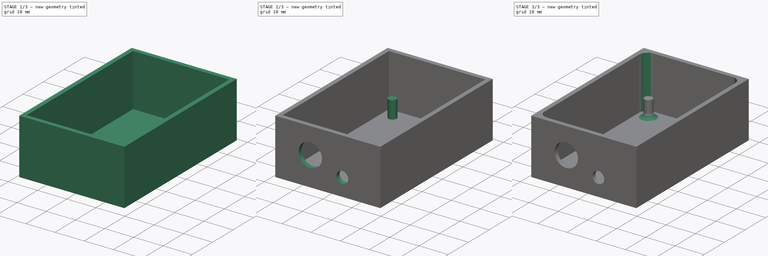
[diagram: build sequence overview — one tinted view per stage of 3, left to right]
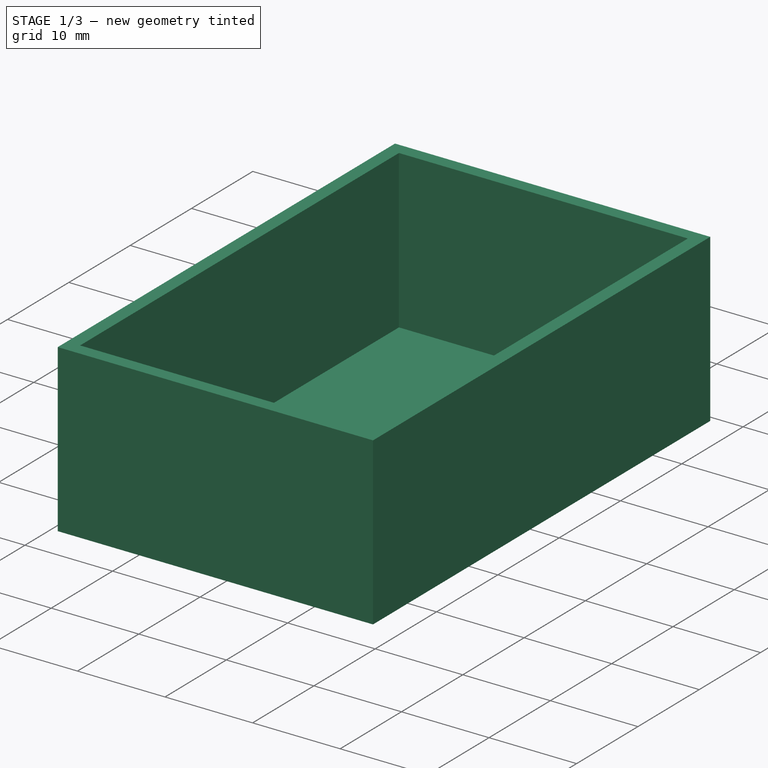
[diagram: stage 1 of 3 — iso view after this stage's code; geometry added in this stage tinted green]
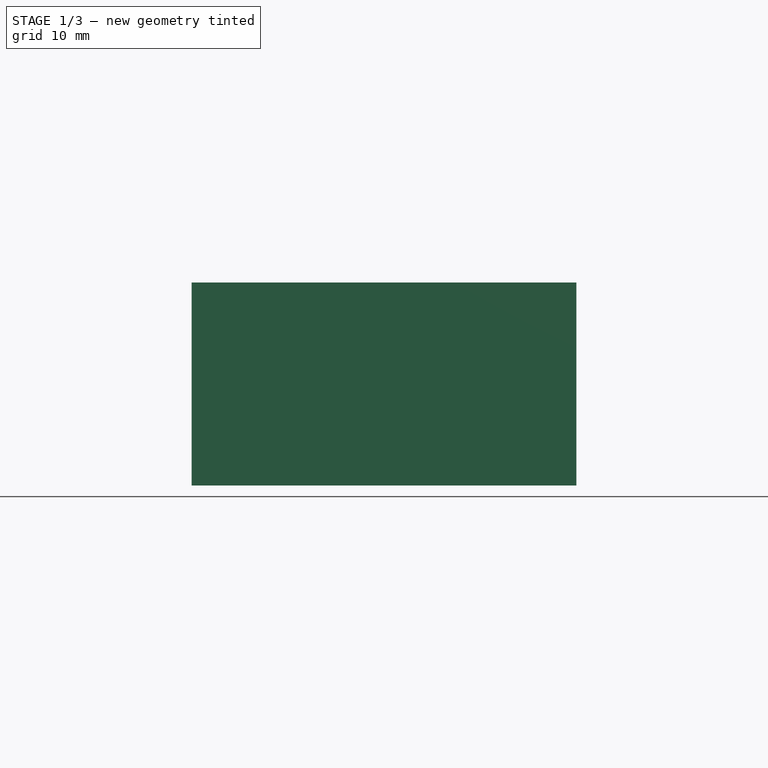
[diagram: stage 1 of 3 — front view after this stage's code; geometry added in this stage tinted green]
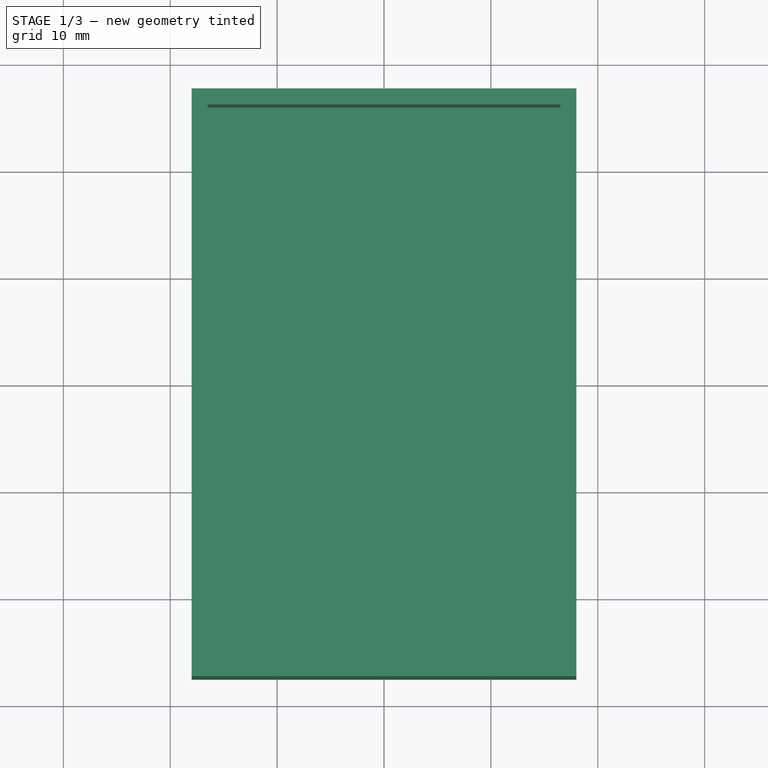
[diagram: stage 1 of 3 — top view after this stage's code; geometry added in this stage tinted green]
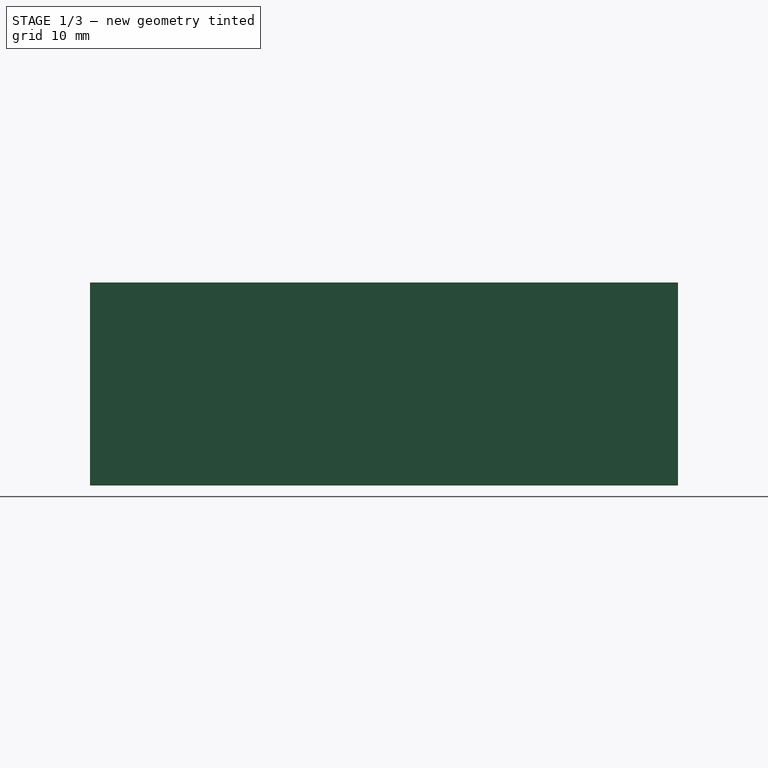
[diagram: stage 1 of 3 — right view after this stage's code; geometry added in this stage tinted green]
FCSTD DOCUMENT  (FreeCAD 0.17R13522 (Git))
Label: WaiKe-jwei
License: All rights reserved
LicenseURL: http://en.wikipedia.org/wiki/All_rights_reserved
objects: Sketcher::SketchObject×4, PartDesign::Pad×2, PartDesign::Pocket×2, PartDesign::Fillet×2, PartDesign::Mirrored×1, PartDesign::Body×1, App::MeasureDistance×1
note: 16 computed .brp shape members not serialized (recipe doc carries the construction recipe); baked Part::Feature solids carry a one-line shape summary decoded from their .brp

FEATURE [Sketcher::SketchObject] Sketch
  MapMode = 5
  Support = -> [XY_Plane]
  sketch-geometry (4):
    g0: LineSegment StartX=-18 StartY=27.5 StartZ=0 EndX=18 EndY=27.5 EndZ=0
    g1: LineSegment StartX=18 StartY=27.5 StartZ=0 EndX=18 EndY=-27.5 EndZ=0
    g2: LineSegment StartX=18 StartY=-27.5 StartZ=0 EndX=-18 EndY=-27.5 EndZ=0
    g3: LineSegment StartX=-18 StartY=-27.5 StartZ=0 EndX=-18 EndY=27.5 EndZ=0
  constraints (12):
    c: Coincident(g0,g1)
    c: Coincident(g1,g2)
    c: Coincident(g2,g3)
    c: Coincident(g3,g0)
    c: Horizontal(g0)
    c: Horizontal(g2)
    c: Vertical(g1)
    c: Vertical(g3)
    c: DistanceX(g0,g0) = 36
    c: DistanceY(g3,g3) = 55
    c: DistanceY(g-1,g0) = 27.5
    c: DistanceX(g0,g-1) = 18
FEATURE [PartDesign::Pad] Pad
  Length = 19
  Length2 = 100
  Profile = -> Sketch
  Type = 0
FEATURE [Sketcher::SketchObject] Sketch001
  ExternalGeometry = -> [Pad]
  MapMode = 5
  Placement = pos=(0,0,19) rot=(0,0,1;0rad)
  Support = -> [Pad]
  sketch-geometry (4):
    g0: LineSegment StartX=-16.5 StartY=26 StartZ=0 EndX=16.5 EndY=26 EndZ=0
    g1: LineSegment StartX=16.5 StartY=26 StartZ=0 EndX=16.5 EndY=-26 EndZ=0
    g2: LineSegment StartX=16.5 StartY=-26 StartZ=0 EndX=-16.5 EndY=-26 EndZ=0
    g3: LineSegment StartX=-16.5 StartY=-26 StartZ=0 EndX=-16.5 EndY=26 EndZ=0
  constraints (12):
    c: Coincident(g0,g1)
    c: Coincident(g1,g2)
    c: Coincident(g2,g3)
    c: Coincident(g3,g0)
    c: Horizontal(g0)
    c: Horizontal(g2)
    c: Vertical(g1)
    c: Vertical(g3)
    c: Distance(g2,g-6) = 1.5
    c: Distance(g0,g-4) = 1.5
    c: Distance(g0,g-3) = 1.5
    c: Distance(g0,g-5) = 1.5
FEATURE [PartDesign::Pocket] Pocket
  BaseFeature = -> Pad
  Length = 18
  Length2 = 100
  Profile = -> Sketch001
  Type = 0
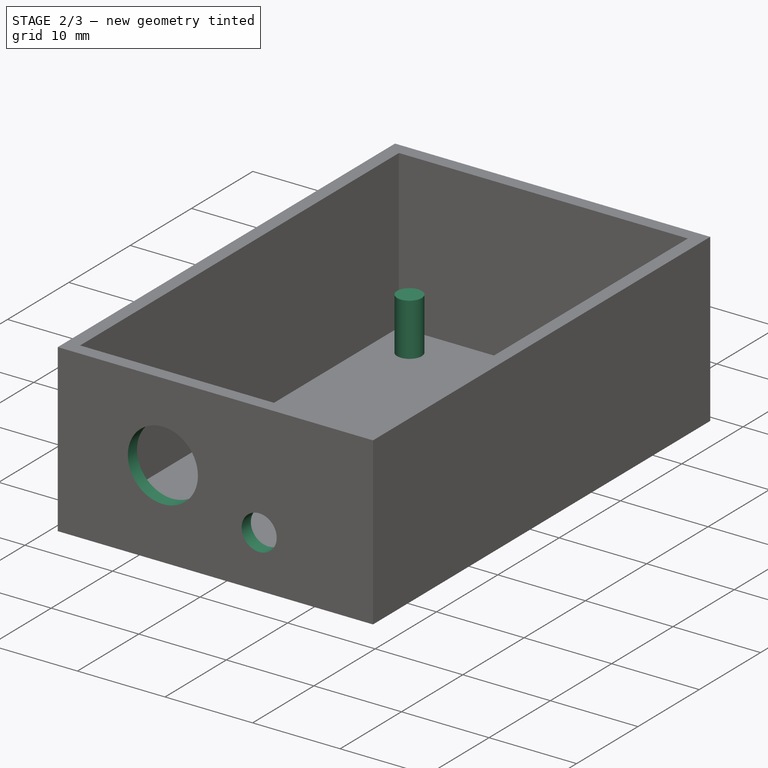
[diagram: stage 2 of 3 — iso view after this stage's code; geometry added in this stage tinted green]
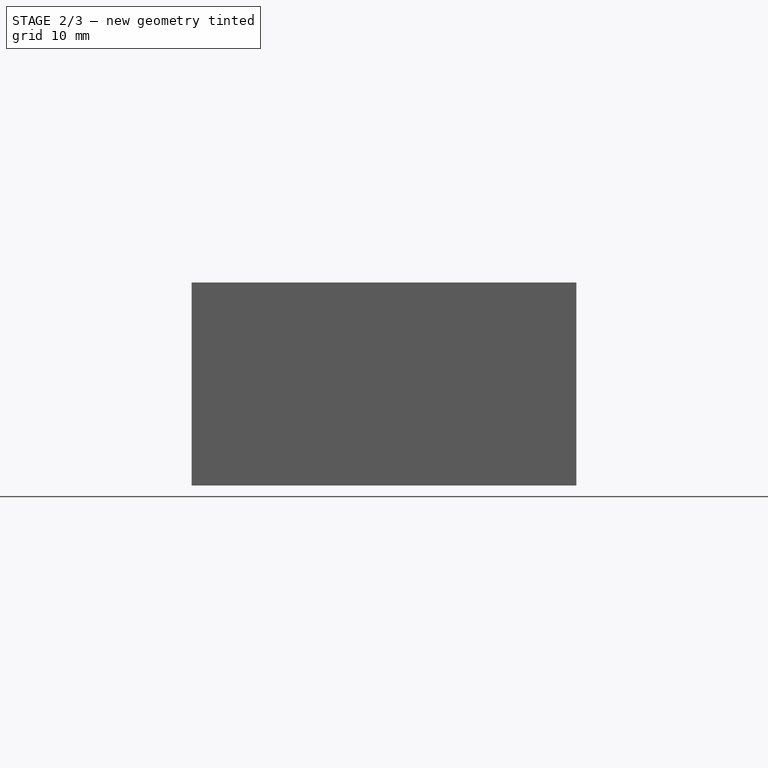
[diagram: stage 2 of 3 — front view after this stage's code; geometry added in this stage tinted green]
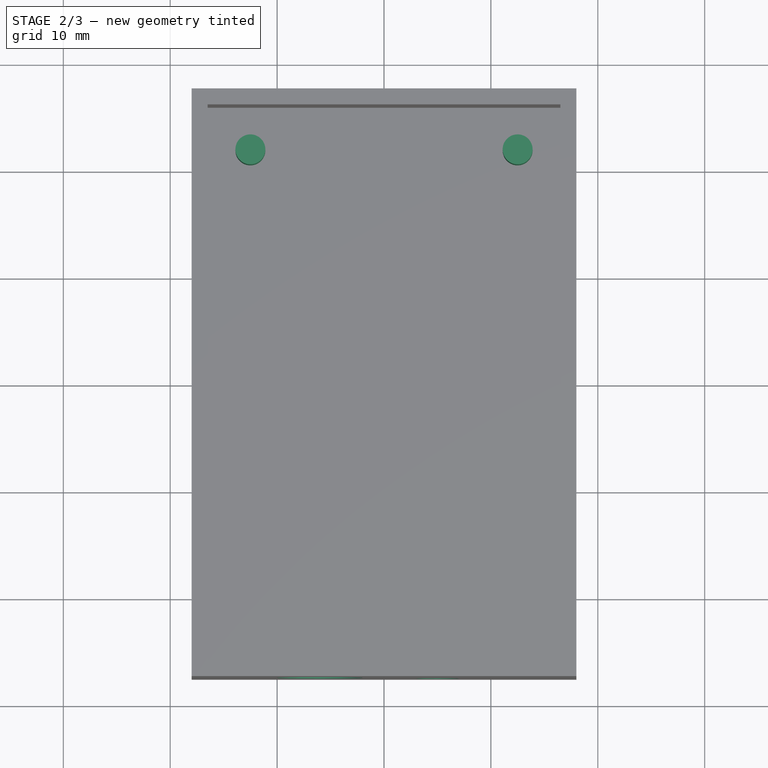
[diagram: stage 2 of 3 — top view after this stage's code; geometry added in this stage tinted green]
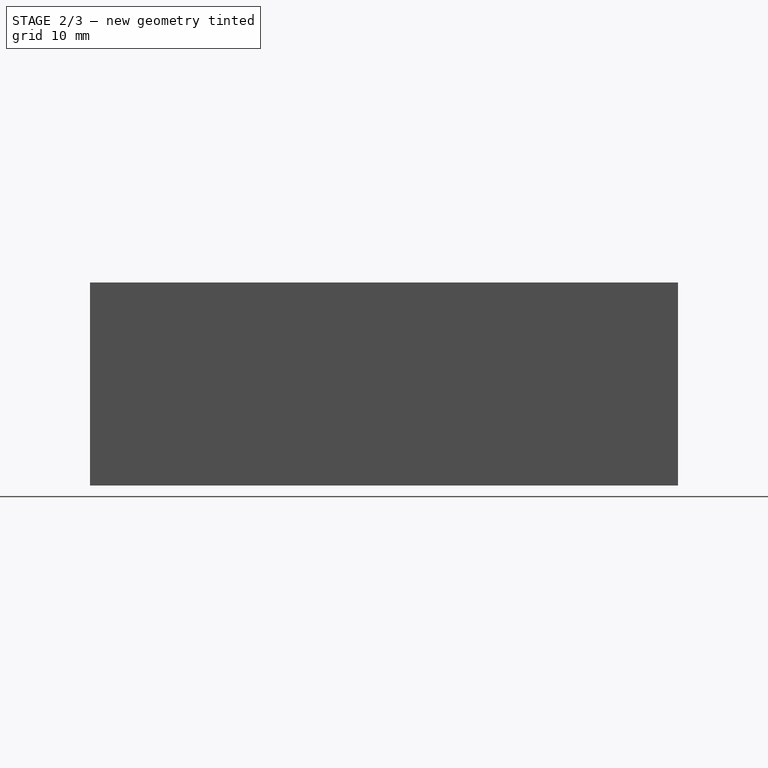
[diagram: stage 2 of 3 — right view after this stage's code; geometry added in this stage tinted green]
FEATURE [Sketcher::SketchObject] Sketch002
  ExternalGeometry = -> [Pocket]
  MapMode = 5
  Placement = pos=(0,0,1) rot=(0,0,1;0rad)
  Support = -> [Pocket]
  sketch-geometry (1):
    g0: Circle CenterX=-12.5 CenterY=22 CenterZ=0 NormalX=0 NormalY=0 NormalZ=1 AngleXU=0 Radius=1.4
  constraints (3):
    c: Radius(g0) = 1.4
    c: Distance(g0,g-3) = 4
    c: Distance(g0,g-4) = 4
FEATURE [PartDesign::Pad] Pad001
  BaseFeature = -> Pocket
  Length = 6
  Length2 = 100
  Profile = -> Sketch002
  Type = 0
FEATURE [PartDesign::Mirrored] Mirrored
  BaseFeature = -> Pad001
  MirrorPlane = -> Sketch002 [V_Axis]
  Originals = -> [Pad001]
FEATURE [Sketcher::SketchObject] Sketch003
  ExternalGeometry = -> [Mirrored]
  MapMode = 5
  Placement = pos=(0,-27.5,0) rot=(1,0,0;1.5708rad)
  Support = -> [Mirrored]
  sketch-geometry (2):
    g0: Circle CenterX=-6 CenterY=10 CenterZ=0 NormalX=0 NormalY=0 NormalZ=1 AngleXU=0 Radius=4
    g1: Circle CenterX=5 CenterY=6 CenterZ=0 NormalX=0 NormalY=0 NormalZ=1 AngleXU=0 Radius=2
  constraints (6):
    c: DistanceY(g-1,g0) = 10
    c: Distance(g0,g-3) = 12
    c: Radius(g0) = 4
    c: DistanceX(g0,g1) = 11
    c: DistanceY(g-1,g1) = 6
    c: Radius(g1) = 2
FEATURE [PartDesign::Pocket] Pocket001
  BaseFeature = -> Mirrored
  Length = 1.5
  Length2 = 100
  Profile = -> Sketch003
  Type = 0
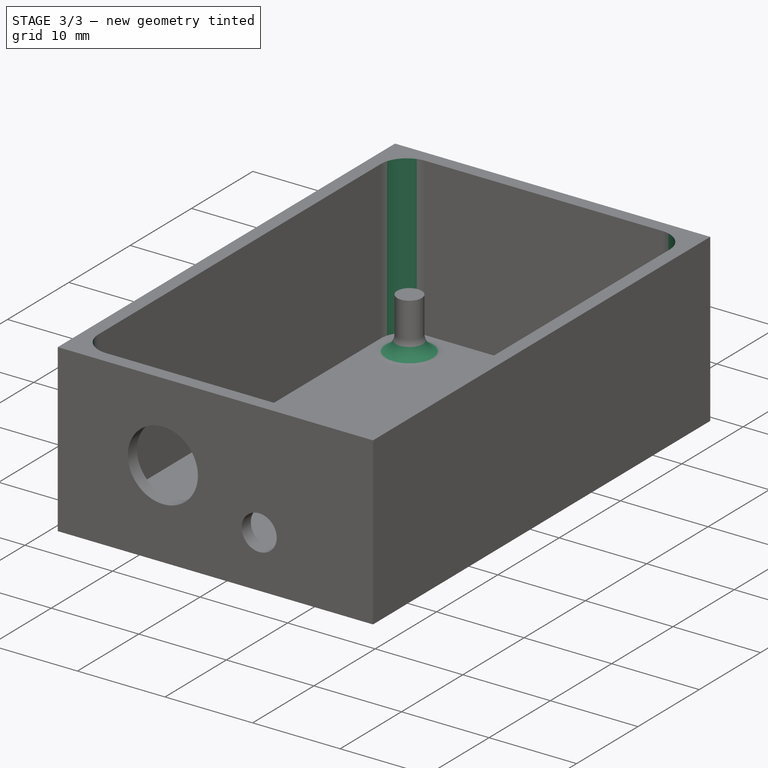
[diagram: stage 3 of 3 — iso view after this stage's code; geometry added in this stage tinted green]
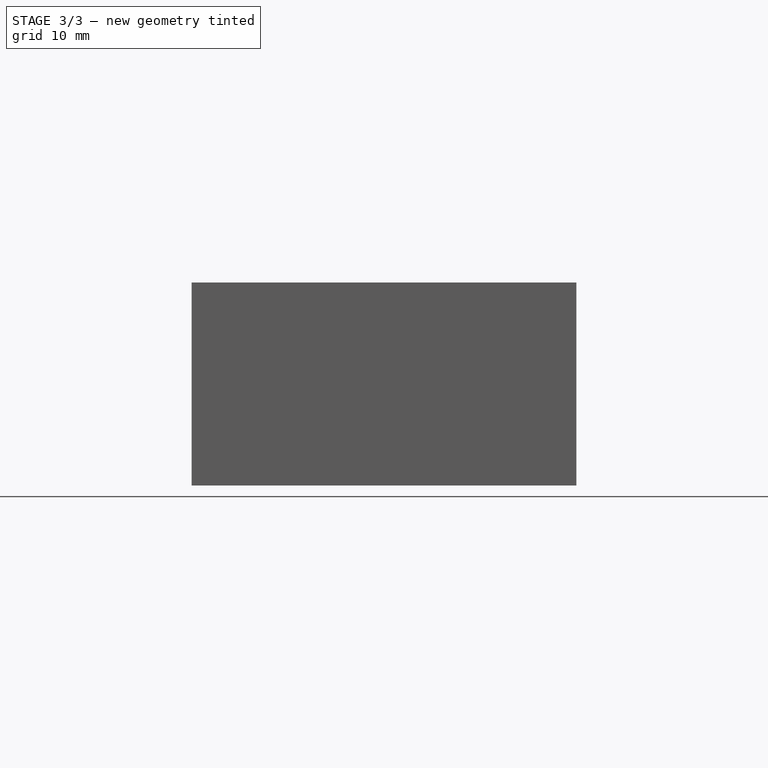
[diagram: stage 3 of 3 — front view after this stage's code; geometry added in this stage tinted green]
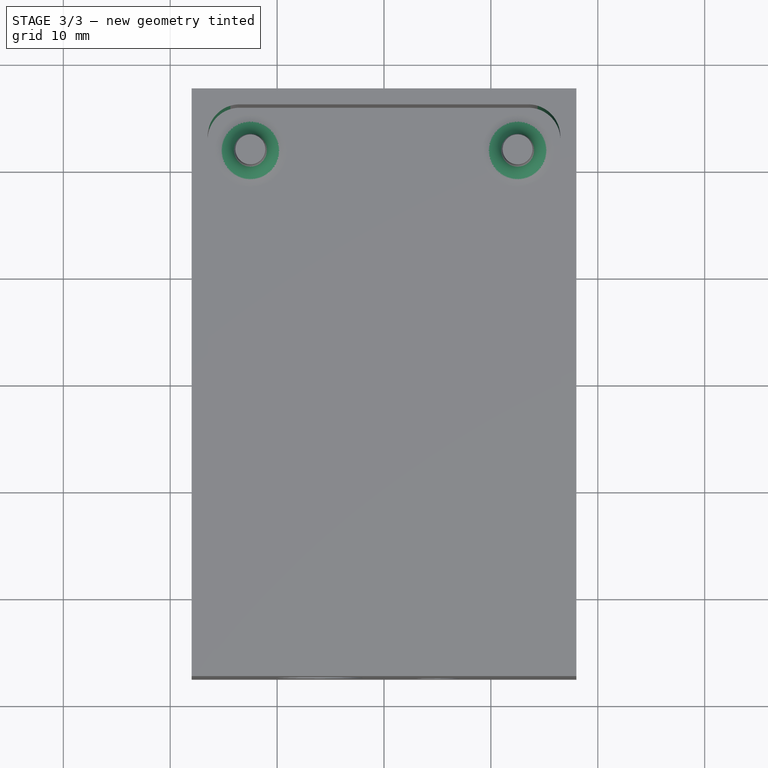
[diagram: stage 3 of 3 — top view after this stage's code; geometry added in this stage tinted green]
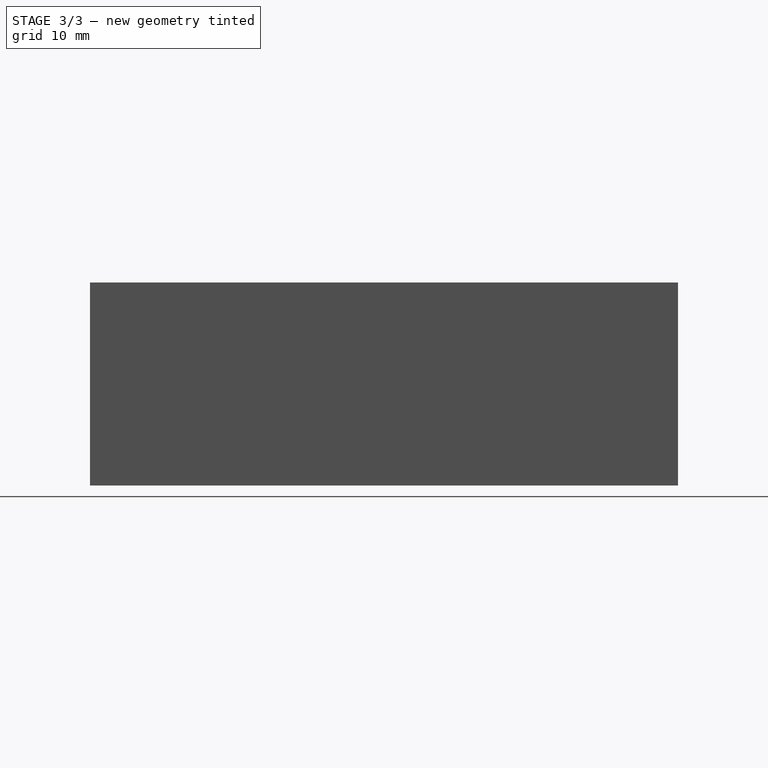
[diagram: stage 3 of 3 — right view after this stage's code; geometry added in this stage tinted green]
FEATURE [PartDesign::Fillet] Fillet
  Base = -> Pocket001 [Edge31,Edge32]
  BaseFeature = -> Pocket001
  Radius = 2
FEATURE [PartDesign::Fillet] Fillet001
  Base = -> Fillet [Edge9,Edge12,Edge15,Edge11]
  BaseFeature = -> Fillet
  Radius = 3
FEATURE [PartDesign::Body] Body
  Group = -> [Sketch,Pad,Sketch001,Pocket,Sketch002,Pad001,Mirrored,Sketch003,Pocket001,Fillet,Fillet001]
  Origin = -> Origin
  Tip = -> Fillet001
FEATURE [App::MeasureDistance] Distance  label="Distance: 3.37 mm"
  Distance = 3.37474
  P1 = (-18,-27.5,19)
  P2 = (-15.5386,-25.1913,19)
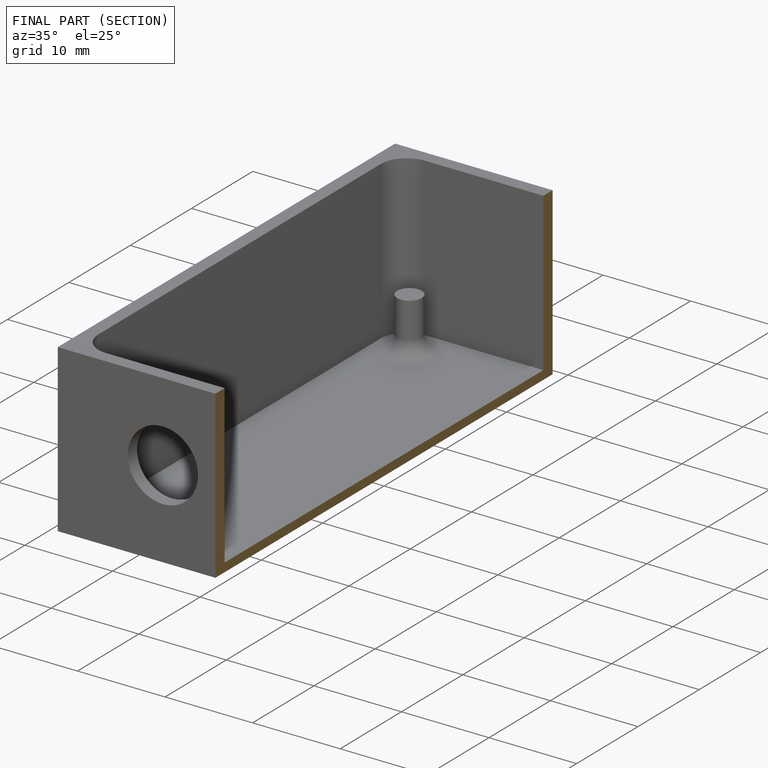
[diagram: finished part — half-section view (interior)]
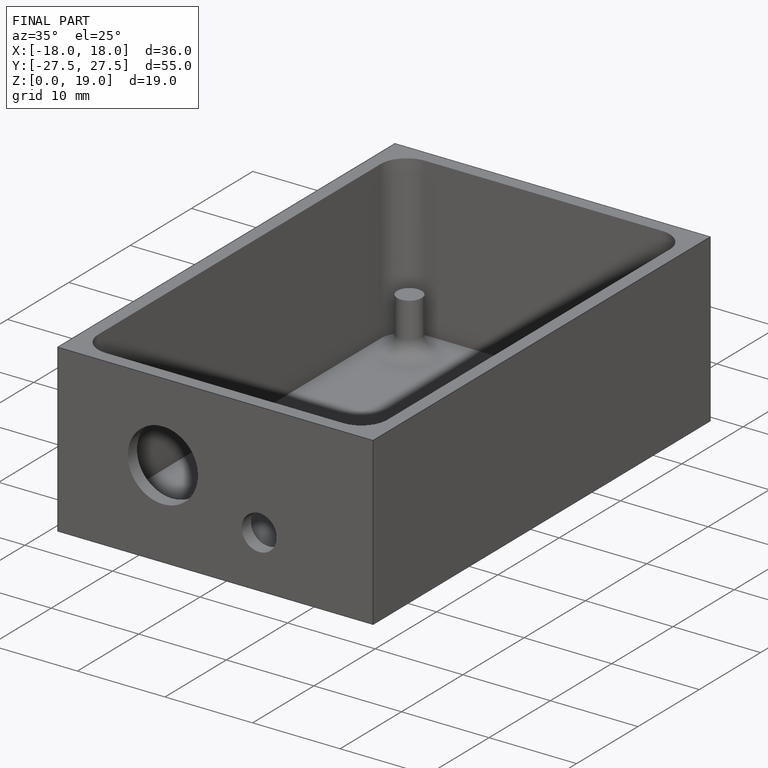
[diagram: finished part — iso view with bounding-box wireframe]
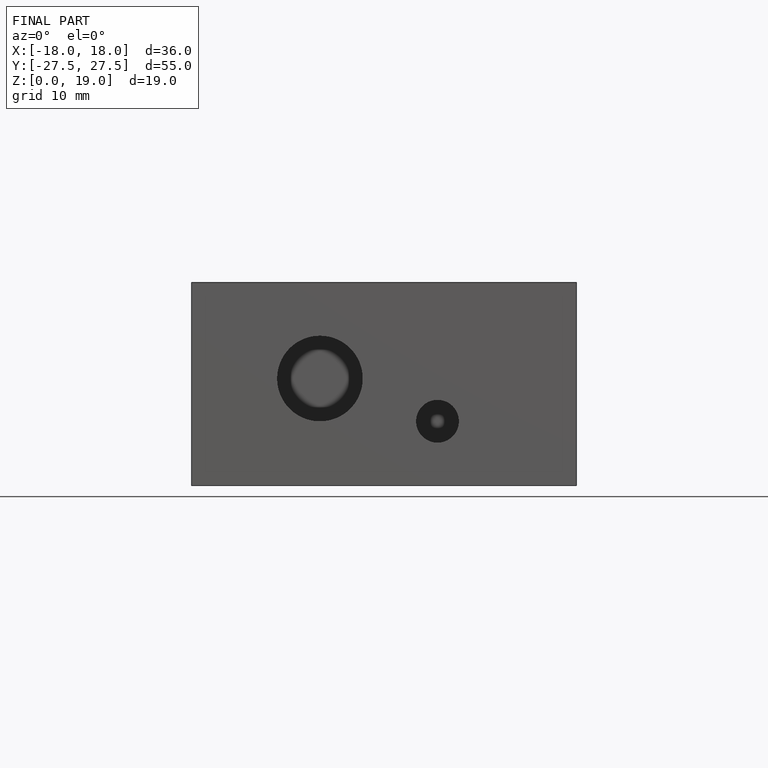
[diagram: finished part — front view with bounding-box wireframe]
